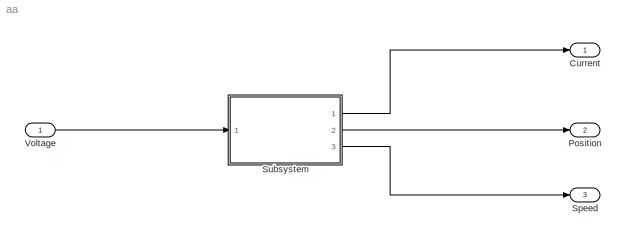
MODEL aa
KIND model
BLOCK [Outport] Current
  IconDisplay = Port number
  SID = 38
BLOCK [Outport] Position
  IconDisplay = Port number
  Port = 2
  SID = 37
BLOCK [Outport] Speed
  IconDisplay = Port number
  Port = 3
  SID = 39
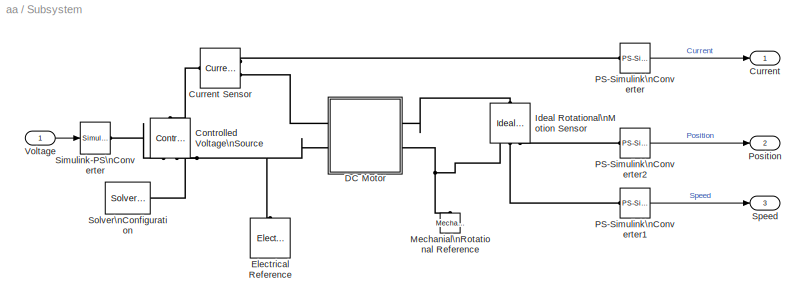
BLOCK [SubSystem] Subsystem
  FunctionWithSeparateData = off
  MaskHideContents = off
  MinAlgLoopOccurrences = off
  Opaque = off
  Ports = [1, 3]
  PropExecContextOutsideSubsystem = off
  RTWSystemCode = Auto
  RequestExecContextInheritance = off
  SID = 40
BLOCK [Reference] Subsystem/Controlled Voltage\nSource  REF=fl_lib/Electrical/Electrical Sources/Controlled Voltage\nSource
  ClassName = controlled_voltage
  ComponentPath = foundation.electrical.sources.controlled_voltage
  ComponentVariantNames = controlled_voltage
  ComponentVariants = foundation.electrical.sources.controlled_voltage
  LocalVarDescs = |i|v
  LocalVarLogging = [0 0]
  LocalVarNames = |i|v
  Ports = [0, 0, 0, 0, 0, 1, 2]
  SID = 31
  SchemaVersion = 1
  SourceBlock = fl_lib/Electrical/Electrical Sources/Controlled Voltage\nSource
  SourceFile = foundation.electrical.sources.controlled_voltage
  SourceType = Controlled Voltage\nSource
  i_Log = off
  v_Log = off
BLOCK [Outport] Subsystem/Current
  IconDisplay = Port number
  SID = 41
BLOCK [Reference] Subsystem/Current Sensor  REF=fl_lib/Electrical/Electrical Sensors/Current Sensor
  ClassName = current
  ComponentPath = foundation.electrical.sensors.current
  ComponentVariantNames = current
  ComponentVariants = foundation.electrical.sensors.current
  LocalVarDescs = |i1|v1
  LocalVarLogging = [0 0]
  LocalVarNames = |i1|v1
  Ports = [0, 0, 0, 0, 0, 1, 2]
  SID = 18
  SchemaVersion = 1
  SourceBlock = fl_lib/Electrical/Electrical Sensors/Current Sensor
  SourceFile = foundation.electrical.sensors.current
  SourceType = Current Sensor
  i1_Log = off
  v1_Log = off
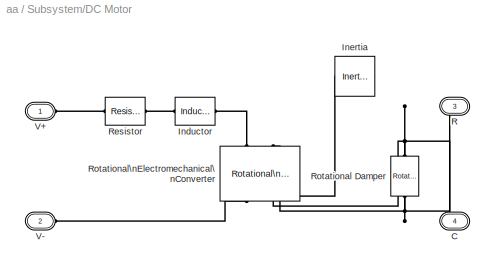
BLOCK [SubSystem] Subsystem/DC Motor
  FunctionWithSeparateData = off
  MaskHideContents = off
  MinAlgLoopOccurrences = off
  Opaque = off
  Ports = [0, 0, 0, 0, 0, 2, 2]
  PropExecContextOutsideSubsystem = off
  RTWSystemCode = Auto
  RequestExecContextInheritance = off
  SID = 11
  ShowPortLabels = FromPortBlockName
BLOCK [PMIOPort] Subsystem/DC Motor/C
  Port = 4
  SID = 15
  Side = Right
  Tag = PMCPort
BLOCK [Reference] Subsystem/DC Motor/Inductor  REF=fl_lib/Electrical/Electrical Elements/Inductor
  ClassName = inductor
  ComponentPath = foundation.electrical.elements.inductor
  ComponentVariantNames = inductor
  ComponentVariants = foundation.electrical.elements.inductor
  LocalVarDescs = |i|v|Internal variable for current through inductor term
  LocalVarLogging = [0 0 0]
  LocalVarNames = |i|v|i_L
  Ports = [0, 0, 0, 0, 0, 1, 1]
  SID = 3
  SchemaVersion = 1
  SourceBlock = fl_lib/Electrical/Electrical Elements/Inductor
  SourceFile = foundation.electrical.elements.inductor
  SourceType = Inductor
  g = 1e-9
  g_unit = 1/Ohm
  i0 = 0
  i0_unit = A
  i_L_Log = off
  i_Log = off
  l = L
  l_unit = H
  r = 0
  r_unit = Ohm
  v_Log = off
BLOCK [Reference] Subsystem/DC Motor/Inertia  REF=fl_lib/Mechanical/Rotational Elements/Inertia
  ClassName = inertia
  ComponentPath = foundation.mechanical.rotational.inertia
  ComponentVariantNames = inertia
  ComponentVariants = foundation.mechanical.rotational.inertia
  LocalVarDescs = |t
  LocalVarLogging = 0
  LocalVarNames = |t
  Ports = [0, 0, 0, 0, 0, 1]
  SID = 6
  SchemaVersion = 1
  SourceBlock = fl_lib/Mechanical/Rotational Elements/Inertia
  SourceFile = foundation.mechanical.rotational.inertia
  SourceType = Inertia
  inertia = J
  inertia_unit = kg*m^2
  initial_velocity = 0
  initial_velocity_unit = rad/s
  t_Log = off
BLOCK [PMIOPort] Subsystem/DC Motor/R
  Port = 3
  SID = 12
  Side = Right
  Tag = PMCPort
BLOCK [Reference] Subsystem/DC Motor/Resistor  REF=fl_lib/Electrical/Electrical Elements/Resistor
  ClassName = resistor
  ComponentPath = foundation.electrical.elements.resistor
  ComponentVariantNames = resistor
  ComponentVariants = foundation.electrical.elements.resistor
  LocalVarDescs = |i|v
  LocalVarLogging = [0 0]
  LocalVarNames = |i|v
  Ports = [0, 0, 0, 0, 0, 1, 1]
  R = R
  R_unit = Ohm
  SID = 2
  SchemaVersion = 1
  SourceBlock = fl_lib/Electrical/Electrical Elements/Resistor
  SourceFile = foundation.electrical.elements.resistor
  SourceType = Resistor
  i_Log = off
  v_Log = off
BLOCK [Reference] Subsystem/DC Motor/Rotational Damper  REF=fl_lib/Mechanical/Rotational Elements/Rotational Damper
  ClassName = damper
  ComponentPath = foundation.mechanical.rotational.damper
  ComponentVariantNames = damper
  ComponentVariants = foundation.mechanical.rotational.damper
  D = b
  D_unit = N*m/(rad/s)
  LocalVarDescs = |t|w
  LocalVarLogging = [0 0]
  LocalVarNames = |t|w
  Ports = [0, 0, 0, 0, 0, 1, 1]
  SID = 29
  SchemaVersion = 1
  SourceBlock = fl_lib/Mechanical/Rotational Elements/Rotational Damper
  SourceFile = foundation.mechanical.rotational.damper
  SourceType = Rotational Damper
  t_Log = off
  w_Log = off
BLOCK [Reference] Subsystem/DC Motor/Rotational\nElectromechanical\nConverter  REF=fl_lib/Electrical/Electrical Elements/Rotational\nElectromechanical\nConverter
  ClassName = rotational_converter
  ComponentPath = foundation.electrical.elements.rotational_converter
  ComponentVariantNames = rotational_converter
  ComponentVariants = foundation.electrical.elements.rotational_converter
  K = K
  K_unit = V/(rad/s)
  LocalVarDescs = |i|v|t|w
  LocalVarLogging = [0 0 0 0]
  LocalVarNames = |i|v|t|w
  Ports = [0, 0, 0, 0, 0, 2, 2]
  SID = 4
  SchemaVersion = 1
  SourceBlock = fl_lib/Electrical/Electrical Elements/Rotational\nElectromechanical\nConverter
  SourceFile = foundation.electrical.elements.rotational_converter
  SourceType = Rotational\nElectromechanical\nConverter
  i_Log = off
  t_Log = off
  v_Log = off
  w_Log = off
BLOCK [PMIOPort] Subsystem/DC Motor/V+
  Port = 1
  SID = 13
  Side = Left
  Tag = PMCPort
BLOCK [PMIOPort] Subsystem/DC Motor/V-
  Port = 2
  SID = 14
  Side = Left
  Tag = PMCPort
BLOCK [Reference] Subsystem/Electrical Reference  REF=fl_lib/Electrical/Electrical Elements/Electrical Reference
  ClassName = reference
  ComponentPath = foundation.electrical.elements.reference
  ComponentVariantNames = reference
  ComponentVariants = foundation.electrical.elements.reference
  LocalVarDescs = |i
  LocalVarLogging = 0
  LocalVarNames = |i
  Ports = [0, 0, 0, 0, 0, 1]
  SID = 25
  SchemaVersion = 1
  SourceBlock = fl_lib/Electrical/Electrical Elements/Electrical Reference
  SourceFile = foundation.electrical.elements.reference
  SourceType = Electrical Reference
  i_Log = off
BLOCK [Reference] Subsystem/Ideal Rotational\nMotion Sensor  REF=fl_lib/Mechanical/Mechanical Sensors/Ideal Rotational\nMotion Sensor
  ClassName = angular_velocity
  ComponentPath = foundation.mechanical.sensors.angular_velocity
  ComponentVariantNames = angular_velocity
  ComponentVariants = foundation.mechanical.sensors.angular_velocity
  LocalVarDescs = |w|t|phi
  LocalVarLogging = [0 0 0]
  LocalVarNames = |w|t|phi
  Ports = [0, 0, 0, 0, 0, 1, 3]
  SID = 21
  SchemaVersion = 1
  SourceBlock = fl_lib/Mechanical/Mechanical Sensors/Ideal Rotational\nMotion Sensor
  SourceFile = foundation.mechanical.sensors.angular_velocity
  SourceType = Ideal Rotational\nMotion Sensor
  offset = 0
  offset_unit = rad
  phi_Log = off
  t_Log = off
  w_Log = off
BLOCK [Reference] Subsystem/Mechanial\nRotational Reference  REF=fl_lib/Mechanical/Rotational Elements/Mechanical\nRotational Reference
  ClassName = reference
  ComponentPath = foundation.mechanical.rotational.reference
  ComponentVariantNames = reference
  ComponentVariants = foundation.mechanical.rotational.reference
  LocalVarDescs = |t
  LocalVarLogging = 0
  LocalVarNames = |t
  Ports = [0, 0, 0, 0, 0, 1]
  SID = 22
  SchemaVersion = 1
  SourceBlock = fl_lib/Mechanical/Rotational Elements/Mechanical\nRotational Reference
  SourceFile = foundation.mechanical.rotational.reference
  SourceType = Mechanical\nRotational Reference
  t_Log = off
BLOCK [Reference] Subsystem/PS-Simulink\nConverter  REF=nesl_utility/PS-Simulink\nConverter
  AffineConversion = off
  Frequencies = []
  LeftPortType = input
  PhysicalDomain = network_engine_domain
  Ports = [0, 1, 0, 0, 0, 1]
  PseudoPeriodic = off
  RightPortType = output
  SID = 26
  SourceBlock = nesl_utility/PS-Simulink\nConverter
  SourceType = PS-Simulink\nConverter
  SubClassName = ps_output
  Unit = 1
BLOCK [Reference] Subsystem/PS-Simulink\nConverter1  REF=nesl_utility/PS-Simulink\nConverter
  AffineConversion = off
  Frequencies = []
  LeftPortType = input
  PhysicalDomain = network_engine_domain
  Ports = [0, 1, 0, 0, 0, 1]
  PseudoPeriodic = off
  RightPortType = output
  SID = 27
  SourceBlock = nesl_utility/PS-Simulink\nConverter
  SourceType = PS-Simulink\nConverter
  SubClassName = ps_output
  Unit = 1
BLOCK [Reference] Subsystem/PS-Simulink\nConverter2  REF=nesl_utility/PS-Simulink\nConverter
  AffineConversion = off
  Frequencies = []
  LeftPortType = input
  PhysicalDomain = network_engine_domain
  Ports = [0, 1, 0, 0, 0, 1]
  PseudoPeriodic = off
  RightPortType = output
  SID = 36
  SourceBlock = nesl_utility/PS-Simulink\nConverter
  SourceType = PS-Simulink\nConverter
  SubClassName = ps_output
  Unit = rad
BLOCK [Outport] Subsystem/Position
  IconDisplay = Port number
  Port = 2
  SID = 43
BLOCK [Reference] Subsystem/Simulink-PS\nConverter  REF=nesl_utility/Simulink-PS\nConverter
  AffineConversion = off
  Frequencies = []
  InputFilterTimeConstant = .001
  InputFiltering = off
  LeftPortType = input
  NoiseDistribution = none
  NoiseParameters = []
  PhysicalDomain = network_engine_domain
  Ports = [1, 0, 0, 0, 0, 0, 1]
  PseudoPeriodic = off
  RightPortType = output
  SID = 32
  SimscapeFilterOrder = 1
  SourceBlock = nesl_utility/Simulink-PS\nConverter
  SourceType = Simulink-PS\nConverter
  SubClassName = ps_input
  UdotUserProvided = 0
  Unit = V
BLOCK [Reference] Subsystem/Solver\nConfiguration  REF=nesl_utility/Solver\nConfiguration
  AbsTol = 1e-06
  Accelerate = off
  DelaysMemoryBudget = 1024
  DoDC = off
  DoFixedCost = off
  EnableSwitchedLinearOptims = on
  FrequencyDomain = off
  Harmonics = []
  LeftPortType = input
  LinearAlgebra = Sparse
  LocalSolverChoice = NE_BACKWARD_EULER_ADVANCER
  LocalSolverSampleTime = .001
  MaxModeIter = 2
  MaxNonlinIter = 3
  MinStep = 1e-09
  PhysicalDomain = network_engine_domain
  Ports = [0, 0, 0, 0, 0, 0, 1]
  Profile = off
  RelTol = 0.001
  ResidualTolerance = 1e-9
  RightPortType = generic
  SID = 20
  SimulateNoise = off
  SourceBlock = nesl_utility/Solver\nConfiguration
  SourceType = Solver\nConfiguration
  SubClassName = solver
  ToWorkspace = off
  Tones = []
  UseCCode = off
  UseLocalSampling = off
  UseLocalSolver = off
BLOCK [Outport] Subsystem/Speed
  IconDisplay = Port number
  Port = 3
  SID = 44
BLOCK [Inport] Subsystem/Voltage
  IconDisplay = Port number
  SID = 42
BLOCK [Inport] Voltage
  IconDisplay = Port number
  SID = 30
LINE Subsystem/PS-Simulink\nConverter1:1 -> Subsystem/Speed:1
LINE Subsystem/PS-Simulink\nConverter2:1 -> Subsystem/Position:1
LINE Subsystem/PS-Simulink\nConverter:1 -> Subsystem/Current:1
LINE Subsystem/Voltage:1 -> Subsystem/Simulink-PS\nConverter:1
LINE Subsystem:1 -> Current:1
LINE Subsystem:2 -> Position:1
LINE Subsystem:3 -> Speed:1
LINE Voltage:1 -> Subsystem:1
PLINE Subsystem/Controlled Voltage\nSource:LConn1 -- Subsystem/Current Sensor:LConn1
PLINE Subsystem/Controlled Voltage\nSource:RConn1 -- Subsystem/Simulink-PS\nConverter:RConn1
PNET net1: Subsystem/Controlled Voltage\nSource:RConn2 -- Subsystem/DC Motor:LConn2 -- Subsystem/Electrical Reference:LConn1 -- Subsystem/Solver\nConfiguration:RConn1
PLINE Subsystem/Current Sensor:RConn1 -- Subsystem/PS-Simulink\nConverter:LConn1
PLINE Subsystem/Current Sensor:RConn2 -- Subsystem/DC Motor:LConn1
PNET net2: Subsystem/DC Motor/C:RConn1 -- Subsystem/DC Motor/Rotational Damper:RConn1 -- Subsystem/DC Motor/Rotational\nElectromechanical\nConverter:RConn2
PLINE Subsystem/DC Motor/Inductor:LConn1 -- Subsystem/DC Motor/Resistor:RConn1
PLINE Subsystem/DC Motor/Inductor:RConn1 -- Subsystem/DC Motor/Rotational\nElectromechanical\nConverter:LConn1
PNET net3: Subsystem/DC Motor/Inertia:LConn1 -- Subsystem/DC Motor/R:RConn1 -- Subsystem/DC Motor/Rotational Damper:LConn1 -- Subsystem/DC Motor/Rotational\nElectromechanical\nConverter:LConn2
PLINE Subsystem/DC Motor/Resistor:LConn1 -- Subsystem/DC Motor/V+:RConn1
PLINE Subsystem/DC Motor/Rotational\nElectromechanical\nConverter:RConn1 -- Subsystem/DC Motor/V-:RConn1
PLINE Subsystem/DC Motor:RConn1 -- Subsystem/Ideal Rotational\nMotion Sensor:LConn1
PNET net4: Subsystem/DC Motor:RConn2 -- Subsystem/Ideal Rotational\nMotion Sensor:RConn1 -- Subsystem/Mechanial\nRotational Reference:LConn1
PLINE Subsystem/Ideal Rotational\nMotion Sensor:RConn2 -- Subsystem/PS-Simulink\nConverter1:LConn1
PLINE Subsystem/Ideal Rotational\nMotion Sensor:RConn3 -- Subsystem/PS-Simulink\nConverter2:LConn1
note: PNET lines group multi-terminal physical nets as a canonical sorted terminal list (undirected conserving connections); 2-terminal nets keep the pairwise PLINE form
